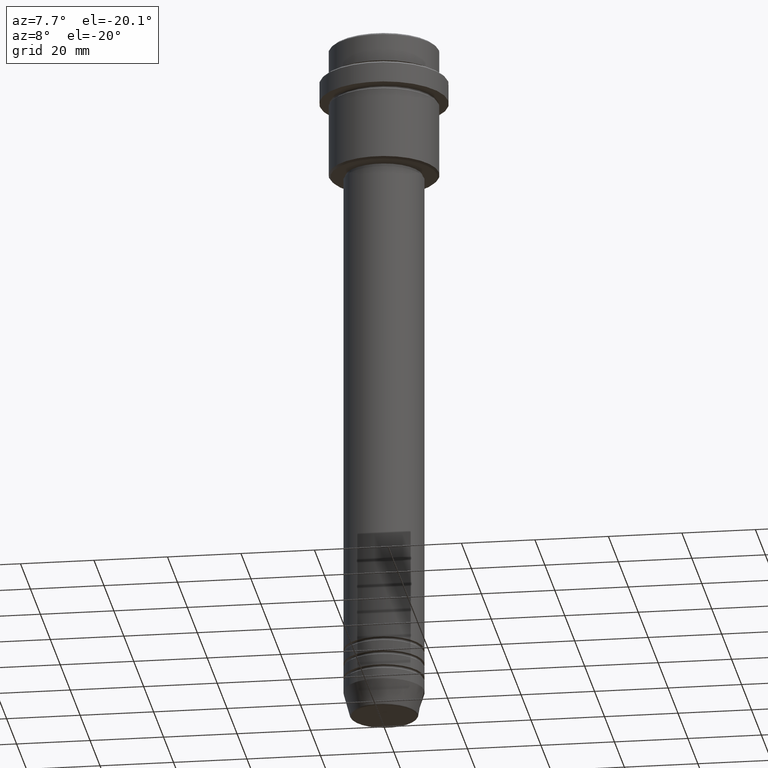
[diagram: clean part render]
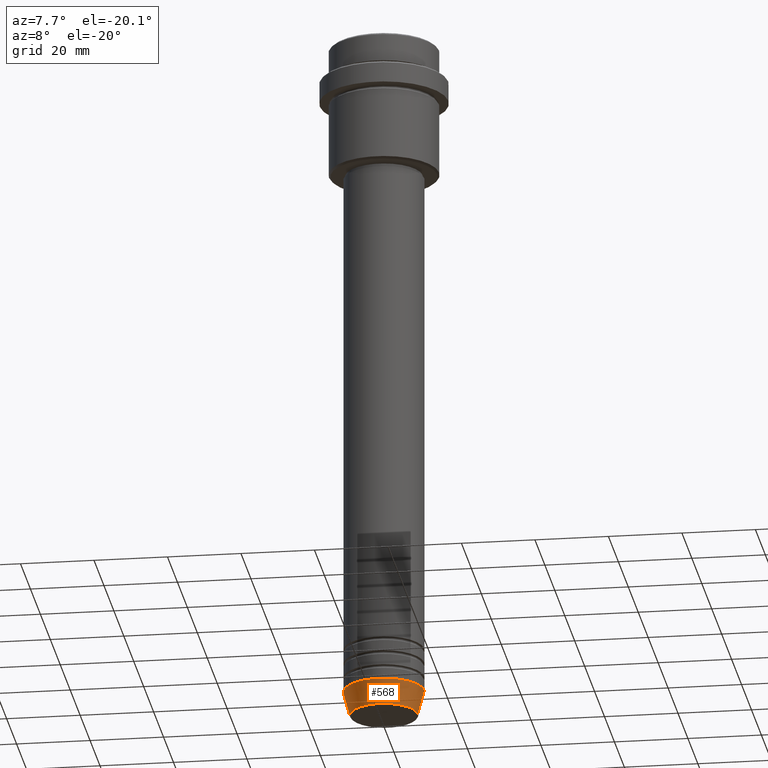
[diagram: same view with one face highlighted and labeled with its STEP entity id]
A machine part, auxiliary view. The second image highlights one B-rep face of the part: STEP entity #568.
In plain terms, the highlighted conical surface has half-angle 15 deg.
Its self-contained STEP definition (entity closure, byte-faithful):
#49 = DIRECTION ( 'NONE',  ( -0.000000000000000000, -0.000000000000000000, 1.000000000000000000 ) ) ;
#54 = CARTESIAN_POINT ( 'NONE',  ( -11.00000000000000000, 1.347111479062088405E-15, -184.0000000000000000 ) ) ;
#89 = CARTESIAN_POINT ( 'NONE',  ( 0.000000000000000000, 0.000000000000000000, -184.0000000000000000 ) ) ;
#99 = DIRECTION ( 'NONE',  ( -0.000000000000000000, -0.000000000000000000, 1.000000000000000000 ) ) ;
#140 = VERTEX_POINT ( 'NONE', #1316 ) ;
#186 = DIRECTION ( 'NONE',  ( -0.2588190451025213501, 3.169619151431772337E-17, 0.9659258262890680902 ) ) ;
#242 = VECTOR ( 'NONE', #186, 1000.000000000000000 ) ;
#255 = EDGE_LOOP ( 'NONE', ( #775, #660, #1024, #729 ) ) ;
#300 = CARTESIAN_POINT ( 'NONE',  ( 11.00000000000000000, 0.000000000000000000, -184.0000000000000000 ) ) ;
#331 = VECTOR ( 'NONE', #605, 1000.000000000000000 ) ;
#381 = EDGE_CURVE ( 'NONE', #140, #480, #928, .T. ) ;
#410 = CARTESIAN_POINT ( 'NONE',  ( -11.00000000000000000, 1.347111479062088405E-15, -184.0000000000000000 ) ) ;
#415 = DIRECTION ( 'NONE',  ( 1.000000000000000000, 0.000000000000000000, 0.000000000000000000 ) ) ;
#425 = CARTESIAN_POINT ( 'NONE',  ( 11.00000000000000000, 0.000000000000000000, -184.0000000000000000 ) ) ;
#442 = DIRECTION ( 'NONE',  ( 1.000000000000000000, 0.000000000000000000, 0.000000000000000000 ) ) ;
#480 = VERTEX_POINT ( 'NONE', #410 ) ;
#568 = ADVANCED_FACE ( 'NONE', ( #1306 ), #763, .T. ) ;
#605 = DIRECTION ( 'NONE',  ( 0.2588190451025213501, 0.000000000000000000, 0.9659258262890680902 ) ) ;
#660 = ORIENTED_EDGE ( 'NONE', *, *, #1033, .T. ) ;
#670 = VERTEX_POINT ( 'NONE', #425 ) ;
#692 = EDGE_CURVE ( 'NONE', #480, #670, #764, .T. ) ;
#729 = ORIENTED_EDGE ( 'NONE', *, *, #692, .F. ) ;
#763 = CONICAL_SURFACE ( 'NONE', #938, 11.00000000000000000, 0.2617993877991500740 ) ;
#764 = CIRCLE ( 'NONE', #920, 11.00000000000000000 ) ;
#766 = EDGE_CURVE ( 'NONE', #1376, #670, #949, .T. ) ;
#775 = ORIENTED_EDGE ( 'NONE', *, *, #381, .F. ) ;
#860 = DIRECTION ( 'NONE',  ( -0.000000000000000000, -0.000000000000000000, 1.000000000000000000 ) ) ;
#880 = AXIS2_PLACEMENT_3D ( 'NONE', #1135, #49, #1139 ) ;
#920 = AXIS2_PLACEMENT_3D ( 'NONE', #936, #860, #415 ) ;
#928 = LINE ( 'NONE', #54, #242 ) ;
#936 = CARTESIAN_POINT ( 'NONE',  ( 0.000000000000000000, 0.000000000000000000, -184.0000000000000000 ) ) ;
#938 = AXIS2_PLACEMENT_3D ( 'NONE', #89, #99, #442 ) ;
#949 = LINE ( 'NONE', #300, #331 ) ;
#1014 = CIRCLE ( 'NONE', #880, 9.223655072137189492 ) ;
#1024 = ORIENTED_EDGE ( 'NONE', *, *, #766, .T. ) ;
#1033 = EDGE_CURVE ( 'NONE', #140, #1376, #1014, .T. ) ;
#1135 = CARTESIAN_POINT ( 'NONE',  ( 0.000000000000000000, 0.000000000000000000, -190.6294095225512422 ) ) ;
#1139 = DIRECTION ( 'NONE',  ( 1.000000000000000000, 0.000000000000000000, 0.000000000000000000 ) ) ;
#1290 = CARTESIAN_POINT ( 'NONE',  ( 9.223655072137189492, 0.000000000000000000, -190.6294095225512422 ) ) ;
#1306 = FACE_OUTER_BOUND ( 'NONE', #255, .T. ) ;
#1316 = CARTESIAN_POINT ( 'NONE',  ( -9.223655072137189492, 1.238341722557647202E-15, -190.6294095225512422 ) ) ;
#1376 = VERTEX_POINT ( 'NONE', #1290 ) ;